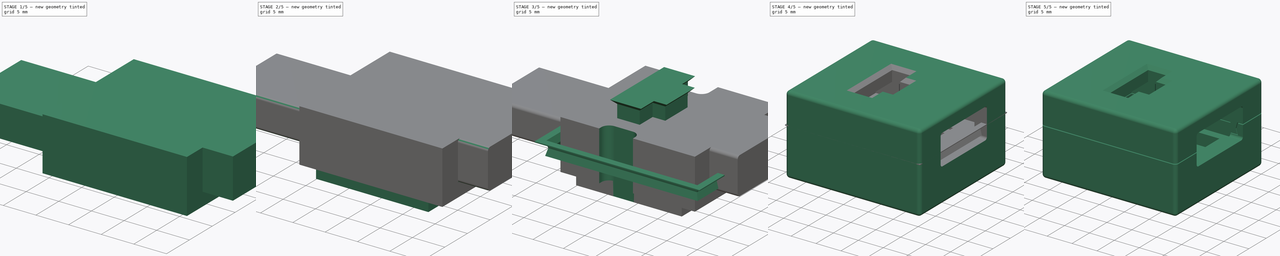
[diagram: build sequence overview — one tinted view per stage of 5, left to right]
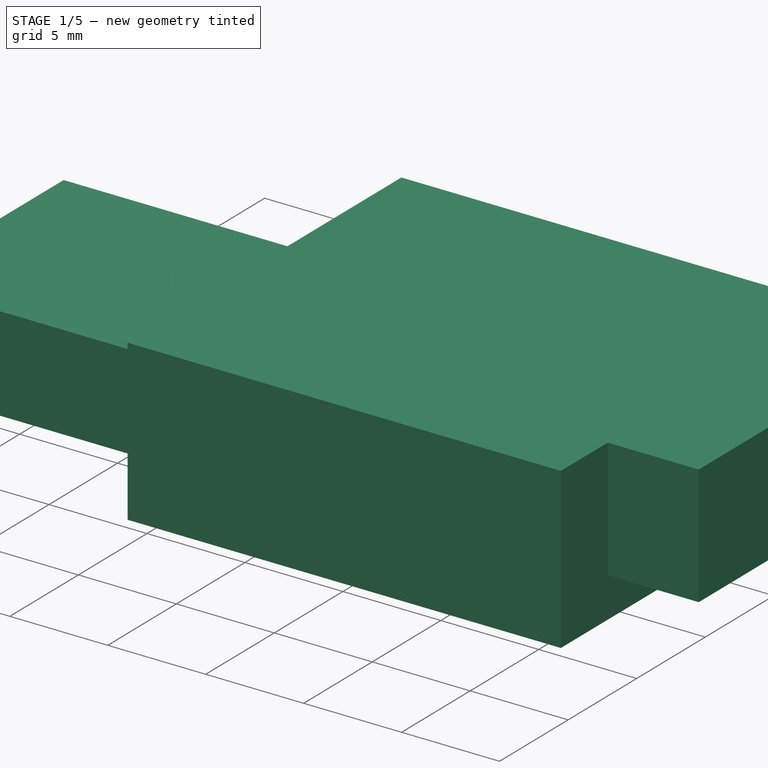
[diagram: stage 1 of 5 — iso view after this stage's code; geometry added in this stage tinted green]
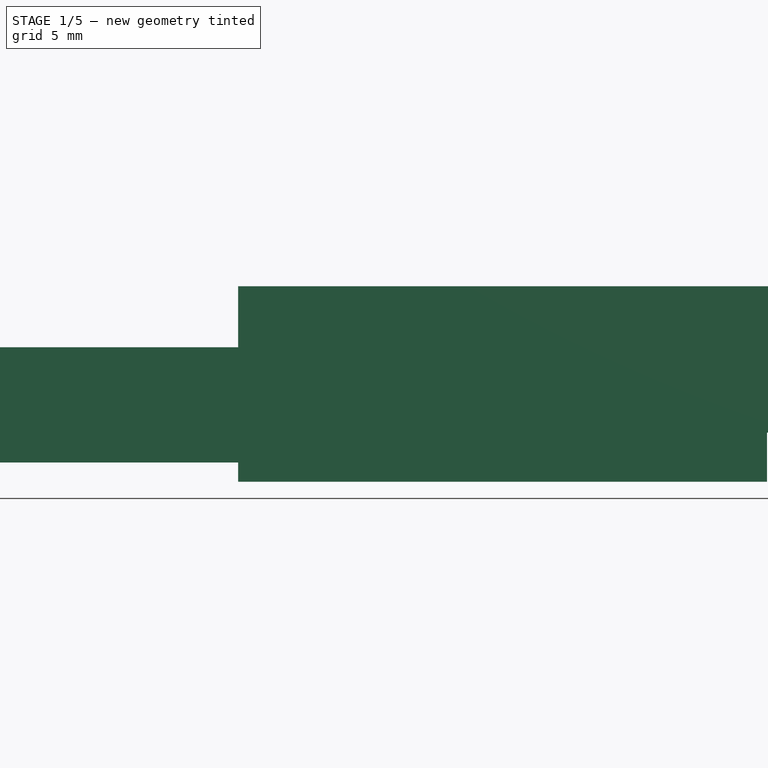
[diagram: stage 1 of 5 — front view after this stage's code; geometry added in this stage tinted green]
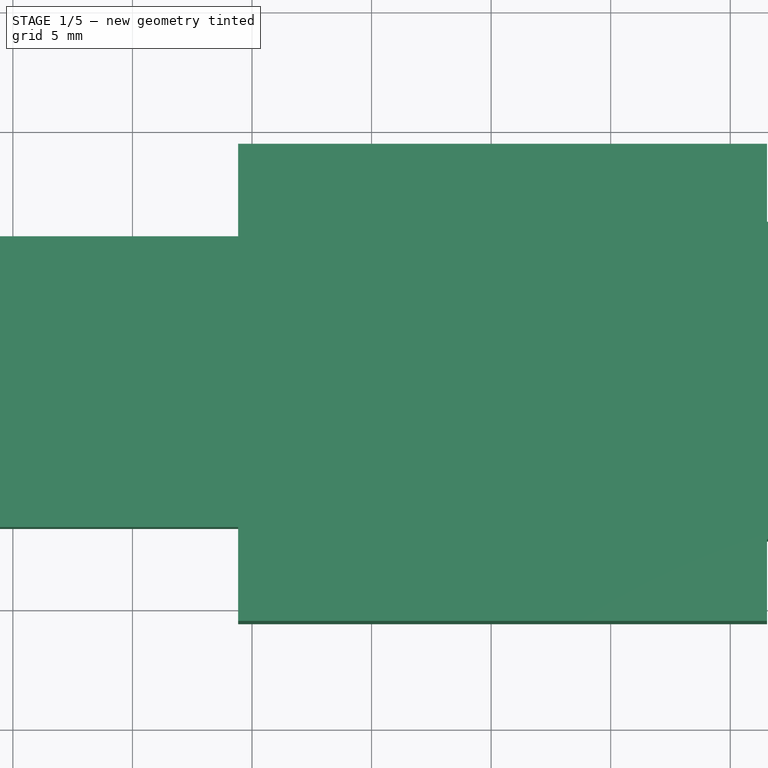
[diagram: stage 1 of 5 — top view after this stage's code; geometry added in this stage tinted green]
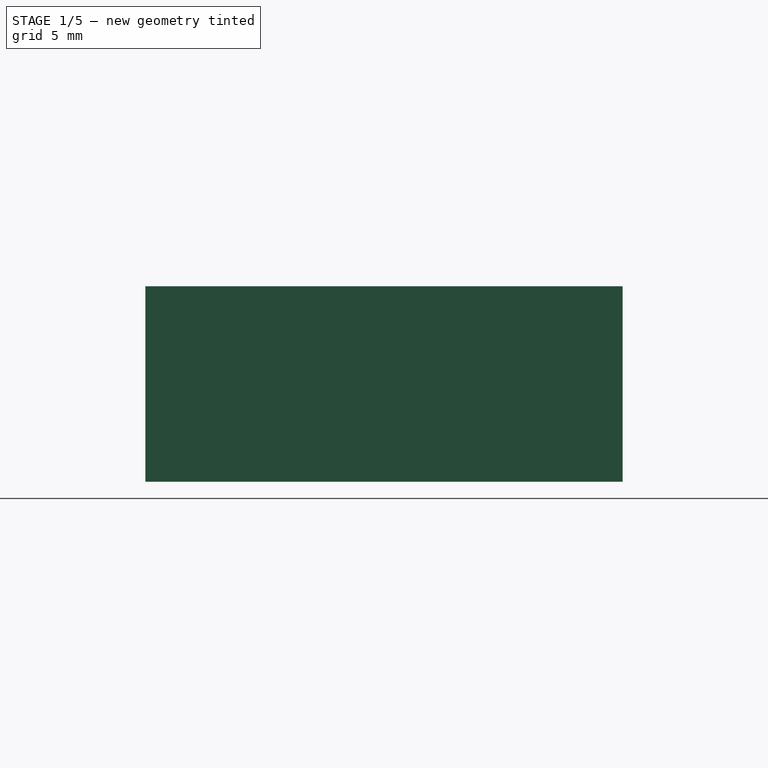
[diagram: stage 1 of 5 — right view after this stage's code; geometry added in this stage tinted green]
FCSTD DOCUMENT  (FreeCAD 0.21R33668 +7 (Git))
Label: case
License: All rights reserved
LicenseURL: http://en.wikipedia.org/wiki/All_rights_reserved
objects: Sketcher::SketchObject×11, PartDesign::Pad×6, Part::Feature×4, App::Part×4, PartDesign::Pocket×3, PartDesign::Body×3, Part::FeaturePython×3, PartDesign::AdditivePipe×2, App::Link×2, Spreadsheet::Sheet×1, PartDesign::Fillet×1, PartDesign::ShapeBinder×1, App::DocumentObjectGroup×1, Part::Cut×1
note: 47 computed .brp shape members not serialized (recipe doc carries the construction recipe); baked Part::Feature solids carry a one-line shape summary decoded from their .brp

FEATURE [Part::Feature] Part__Feature  label="COMPOUND"
  shape: bbox 15.31 x 14.02 x 10.91 mm, 836 faces, 6 solids (baked)
FEATURE [App::Part] _1400416021  label="61400416021"
  Group = -> [Part__Feature]
  Origin = -> Origin
  Placement = pos=(14.858,9.469,4.35) rot=(0,0,1;1.5708rad)
FEATURE [Part::Feature] Part__Feature001  label="SOLID"
  shape: bbox 2.54 x 10.16 x 11.54 mm, 100 faces (baked)
FEATURE [App::Part] PinHeader_1x04_P2_54mm_Vertical  label="PinHeader_1x04_P2.54mm_Vertical"
  Group = -> [Part__Feature001]
  Origin = -> Origin001
  Placement = pos=(7.747,5.349,1.25) rot=(0,0,1;3.14159rad)
FEATURE [Part::Feature] Part__Feature002  label="COMPOUND001"
  shape: bbox 12.7 x 5.97 x 20.36 mm, 302 faces (baked)
FEATURE [App::Part] _80370001  label="480370001"
  Group = -> [Part__Feature002]
  Origin = -> Origin002
  Placement = pos=(-5.744,9.469,2.05) rot=(-0.57735,0.57735,0.57735;4.18879rad)
FEATURE [Part::Feature] Part__Feature003  label="COMPOUND002"
  shape: bbox 20.96 x 18.8 x 1.2 mm, 34 faces (baked)
FEATURE [App::Part] Open_CASCADE_STEP_translator_6_9_1  label="Open CASCADE STEP translator 6.9 1"
  Group = -> [_1400416021,PinHeader_1x04_P2_54mm_Vertical,_80370001,Part__Feature003]
  Origin = -> Origin003
FEATURE [Sketcher::SketchObject] Sketch  label="NegBaseSketch"
  AttachmentOffset = pos=(0,0,-0.26) rot=(0,0,1;0rad)
  FullyConstrained = true
  MapMode = 5
  Placement = pos=(0,0,-0.26) rot=(0,0,1;0rad)
  Support = -> [XY_Plane004]
  expr: .AttachmentOffset.Base.z = -0.2 mm - <<Param>>.T_Z
  expr: .Constraints.X1 = -<<Param>>.S_SIDE - <<Param>>.T_XY
  expr: .Constraints.X2 = 20.955 mm + <<Param>>.S_SIDE + <<Param>>.T_XY
  expr: .Constraints.Y1 = -<<Param>>.S_SIDE - <<Param>>.T_XY
  expr: .Constraints.Y2 = 18.796 mm + <<Param>>.S_SIDE + <<Param>>.T_XY
  sketch-geometry (4):
    g0: LineSegment StartX=-0.58 StartY=-0.58 StartZ=0 EndX=21.535 EndY=-0.58 EndZ=0
    g1: LineSegment StartX=21.535 StartY=-0.58 StartZ=0 EndX=21.535 EndY=19.376 EndZ=0
    g2: LineSegment StartX=21.535 StartY=19.376 StartZ=0 EndX=-0.58 EndY=19.376 EndZ=0
    g3: LineSegment StartX=-0.58 StartY=19.376 StartZ=0 EndX=-0.58 EndY=-0.58 EndZ=0
  constraints (12):
    c: Coincident(g0,g1)
    c: Coincident(g1,g2)
    c: Coincident(g2,g3)
    c: Coincident(g3,g0)
    c: Horizontal(g0)
    c: Horizontal(g2)
    c: Vertical(g1)
    c: Vertical(g3)
    c: DistanceX(g1) = 21.535  'X2'
    c: DistanceY(g1) = 19.376  'Y2'
    c: DistanceX(g0) = -0.58  'X1'
    c: DistanceY(g0) = -0.58  'Y1'
FEATURE [PartDesign::Pad] Pad  label="NegBasePad"
  Direction = (0,0,1)
  Length = 8.17
  Length2 = 10
  Profile = -> Sketch
  ReferenceAxis = -> Sketch [N_Axis]
  Type = 0
  expr: Length = 8.05 mm + 2 * <<Param>>.T_Z
FEATURE [Sketcher::SketchObject] Sketch001  label="NegUsbJackSketch"
  AttachmentOffset = pos=(0,0,1.79) rot=(0,0,1;0rad)
  FullyConstrained = true
  MapMode = 5
  Placement = pos=(0,0,1.79) rot=(0,0,1;0rad)
  Support = -> [XY_Plane004]
  expr: .AttachmentOffset.Base.z = 1.85 mm - <<Param>>.T_Z
  expr: .Constraints.Y1 = 2.919 mm - <<Param>>.T_XY
  expr: .Constraints.Y2 = 16.03 mm + <<Param>>.T_XY
  sketch-geometry (4):
    g0: LineSegment StartX=12.18 StartY=2.839 StartZ=0 EndX=26.18 EndY=2.839 EndZ=0
    g1: LineSegment StartX=26.18 StartY=2.839 StartZ=0 EndX=26.18 EndY=16.11 EndZ=0
    g2: LineSegment StartX=26.18 StartY=16.11 StartZ=0 EndX=12.18 EndY=16.11 EndZ=0
    g3: LineSegment StartX=12.18 StartY=16.11 StartZ=0 EndX=12.18 EndY=2.839 EndZ=0
  constraints (12):
    c: Coincident(g0,g1)
    c: Coincident(g1,g2)
    c: Coincident(g2,g3)
    c: Coincident(g3,g0)
    c: Horizontal(g0)
    c: Horizontal(g2)
    c: Vertical(g1)
    c: Vertical(g3)
    c: DistanceX(g0) = 12.18  'X1'
    c: DistanceY(g0) = 2.839  'Y1'
    c: DistanceX(g1) = 26.18  'X2'
    c: DistanceY(g1) = 16.11  'Y2'
FEATURE [PartDesign::Pad] Pad002  label="NegUsbJackPad"
  BaseFeature = -> Pad
  Direction = (0,0,1)
  Length = 6.12
  Length2 = 10
  Profile = -> Sketch001
  ReferenceAxis = -> Sketch001 [N_Axis]
  Type = 0
  expr: Length = 6 mm + 2 * <<Param>>.T_Z
FEATURE [Sketcher::SketchObject] Sketch003  label="NegUsbPlugSketch"
  AttachmentOffset = pos=(0,0,0.54) rot=(0,0,1;0rad)
  FullyConstrained = true
  MapMode = 5
  Placement = pos=(0,0,0.54) rot=(0,0,1;0rad)
  Support = -> [XY_Plane004]
  expr: .AttachmentOffset.Base.z = 0.6 mm - <<Param>>.T_Z
  expr: .Constraints.Y1 = 3.469 mm - <<Param>>.T_XY
  expr: .Constraints.Y2 = 15.469 mm + <<Param>>.T_XY
  sketch-geometry (4):
    g0: LineSegment StartX=-15.14 StartY=3.389 StartZ=0 EndX=3.66 EndY=3.389 EndZ=0
    g1: LineSegment StartX=3.66 StartY=3.389 StartZ=0 EndX=3.66 EndY=15.549 EndZ=0
    g2: LineSegment StartX=3.66 StartY=15.549 StartZ=0 EndX=-15.14 EndY=15.549 EndZ=0
    g3: LineSegment StartX=-15.14 StartY=15.549 StartZ=0 EndX=-15.14 EndY=3.389 EndZ=0
  constraints (12):
    c: Coincident(g0,g1)
    c: Coincident(g1,g2)
    c: Coincident(g2,g3)
    c: Coincident(g3,g0)
    c: Horizontal(g0)
    c: Horizontal(g2)
    c: Vertical(g1)
    c: Vertical(g3)
    c: DistanceX(g0) = 3.66  'X1'
    c: DistanceY(g0) = 3.389  'Y1'
    c: DistanceX(g2) = -15.14  'X2'
    c: DistanceY(g2) = 15.549  'Y2'
FEATURE [PartDesign::Pad] Pad003  label="NegUsbPlugPad"
  BaseFeature = -> Pad002
  Direction = (0,0,1)
  Length = 4.82
  Length2 = 10
  Profile = -> Sketch003
  ReferenceAxis = -> Sketch003 [N_Axis]
  Type = 0
  expr: Length = 4.7 mm + 2 * <<Param>>.T_Z
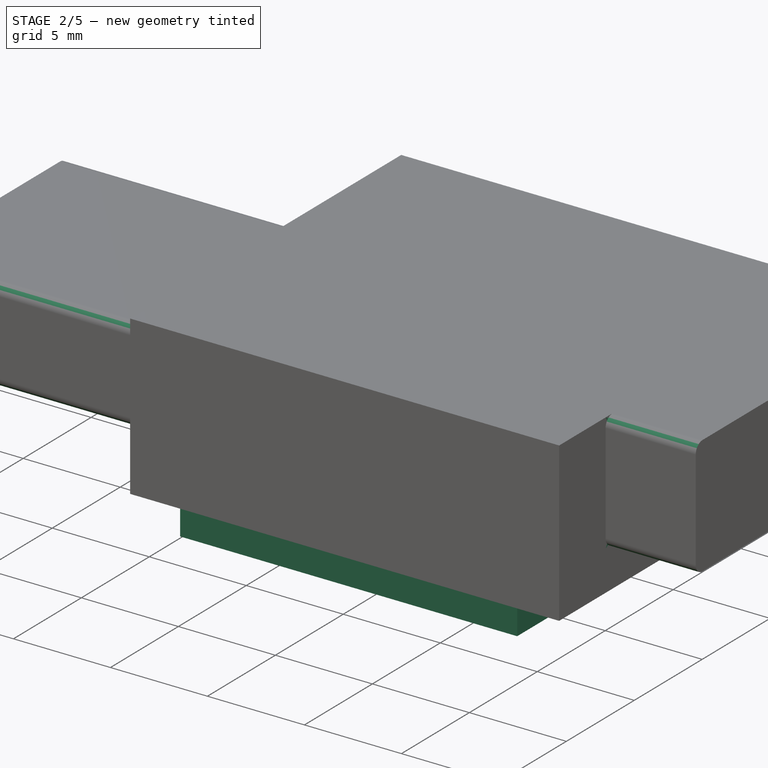
[diagram: stage 2 of 5 — iso view after this stage's code; geometry added in this stage tinted green]
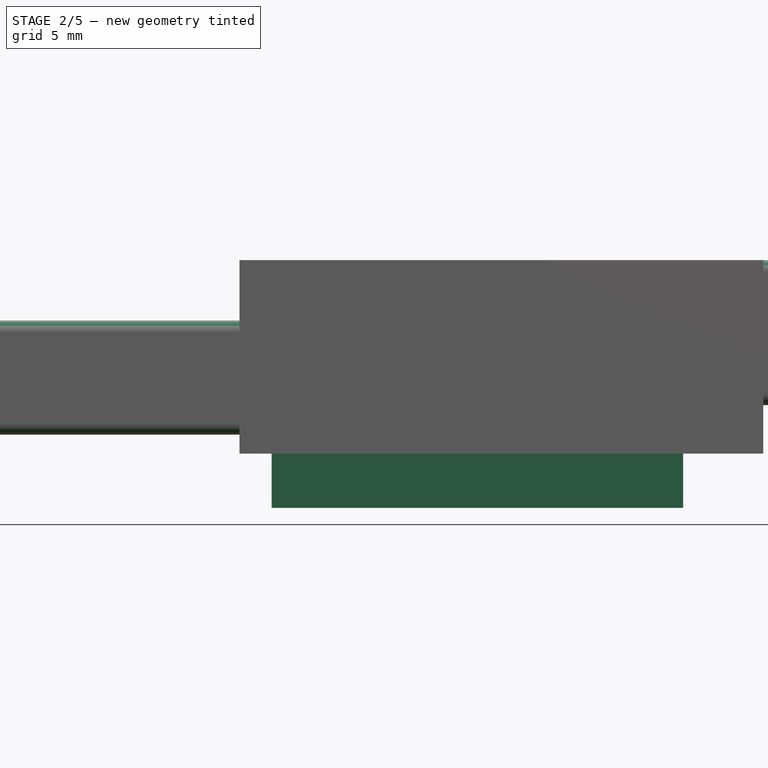
[diagram: stage 2 of 5 — front view after this stage's code; geometry added in this stage tinted green]
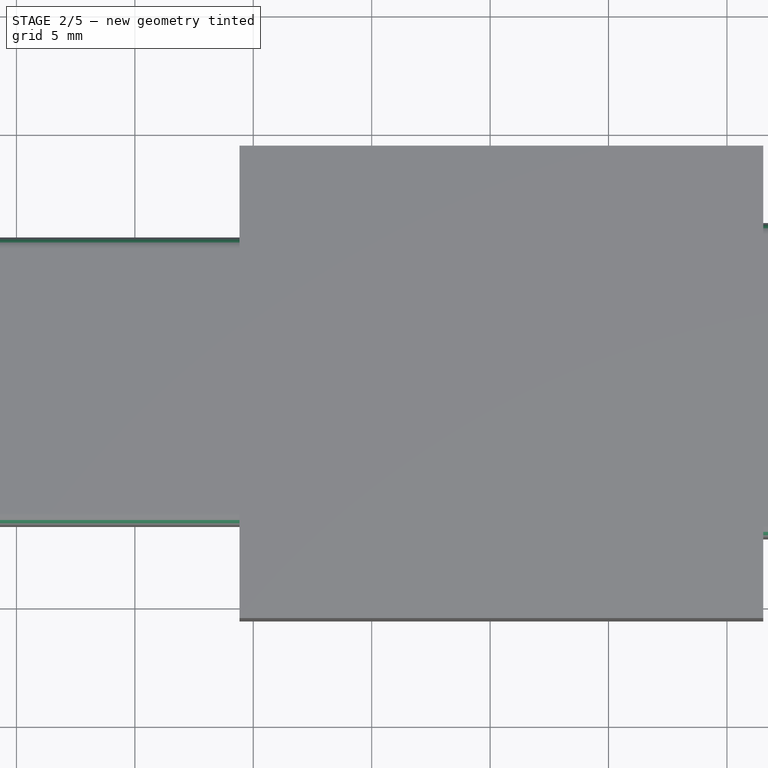
[diagram: stage 2 of 5 — top view after this stage's code; geometry added in this stage tinted green]
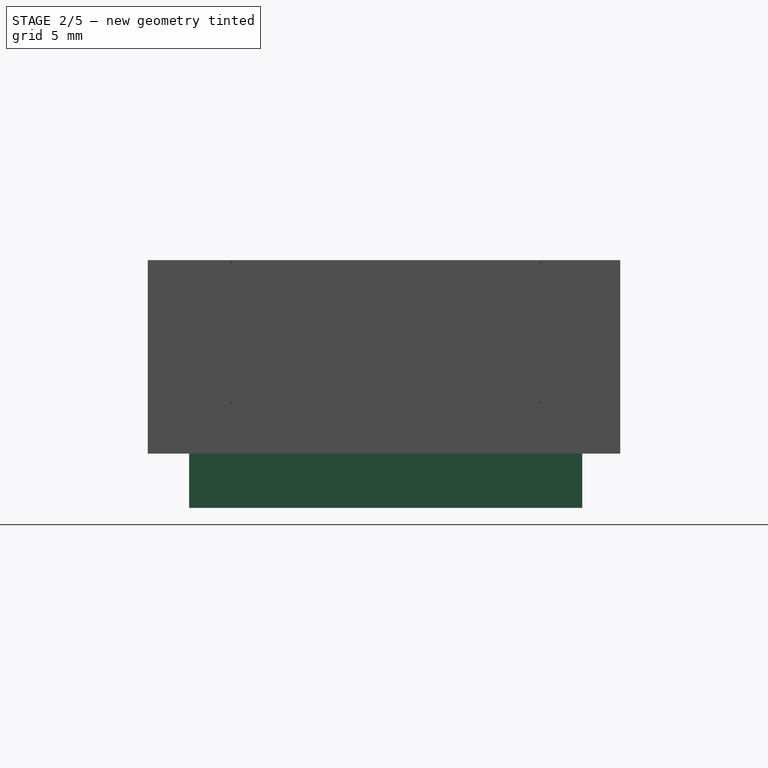
[diagram: stage 2 of 5 — right view after this stage's code; geometry added in this stage tinted green]
FEATURE [Spreadsheet::Sheet] Spreadsheet  label="Param"
  cells = A1='Key; B1='Value; C1='Comment; A2='T_XY; B2(T_XY)==0.08 mm; C2='X/Y tolerancy.; A3='T_Z; B3(T_Z)==0.06 mm; C3='Z tolerancy.; A4='T_WALL; B4(T_WALL)==2.5 mm; C4='Wall thickness.; A5='S_SIDE; B5(S_SIDE)==0.5 mm; C5='Side spacing.; A6='S_PIN; B6(S_PIN)==2.55 mm; C6='Pin spacing.; A7='W_PIN_LATCH; B7(W_PIN_LATCH)==2 mm; C7='Pin latch width.; A8='H_PIN_LATCH; B8(H_PIN_LATCH)==0.2 in; C8='Pin latch height.; A9='D_LATCH; B9(D_LATCH)==2 mm; C9='Wall latch depth.; A10='A_LATCH; B10(A_LATCH)==75 °; C10='Wall latch angle.; A11='R_CORNER; B11(R_CORNER)==0.7 mm; C11='Corner radius.
FEATURE [Sketcher::SketchObject] Sketch004  label="NegPinsSketch"
  FullyConstrained = true
  MapMode = 5
  Support = -> [XY_Plane004]
  expr: .Constraints.X1 = 1.356 mm - 0.5 mm - <<Param>>.T_XY
  expr: .Constraints.X2 = 17.068 mm + 1 mm + <<Param>>.T_XY
  expr: .Constraints.Y1 = 1.749 mm - 0.5 mm - <<Param>>.T_XY
  expr: .Constraints.Y2 = 17.189 mm + 0.5 mm + <<Param>>.T_XY
  sketch-geometry (4):
    g0: LineSegment StartX=0.776 StartY=17.769 StartZ=0 EndX=18.148 EndY=17.769 EndZ=0
    g1: LineSegment StartX=18.148 StartY=17.769 StartZ=0 EndX=18.148 EndY=1.169 EndZ=0
    g2: LineSegment StartX=18.148 StartY=1.169 StartZ=0 EndX=0.776 EndY=1.169 EndZ=0
    g3: LineSegment StartX=0.776 StartY=1.169 StartZ=0 EndX=0.776 EndY=17.769 EndZ=0
  constraints (12):
    c: Coincident(g0,g1)
    c: Coincident(g1,g2)
    c: Coincident(g2,g3)
    c: Coincident(g3,g0)
    c: Horizontal(g0)
    c: Horizontal(g2)
    c: Vertical(g1)
    c: Vertical(g3)
    c: DistanceX(g2) = 0.776  'X1'
    c: DistanceY(g2) = 1.169  'Y1'
    c: DistanceX(g0) = 18.148  'X2'
    c: DistanceY(g0) = 17.769  'Y2'
FEATURE [PartDesign::Pad] Pad004  label="NegPinsPad"
  BaseFeature = -> Pad003
  Direction = (0,0,1)
  Length = 2.55
  Length2 = 10
  Profile = -> Sketch004
  ReferenceAxis = -> Sketch004 [N_Axis]
  Reversed = true
  Type = 0
  expr: Length = <<Param>>.S_PIN
FEATURE [Sketcher::SketchObject] Sketch005  label="NegUsbJackEdgeSketch"
  AttachmentOffset = pos=(0,0,21.535) rot=(0,0,1;0rad)
  FullyConstrained = true
  MapMode = 5
  Placement = pos=(21.535,-4.8e-15,4.8e-15) rot=(0.57735,0.57735,0.57735;2.0944rad)
  Support = -> [YZ_Plane004]
  expr: .AttachmentOffset.Base.z = <<NegBaseSketch>>.Constraints.X2
  expr: .Constraints.X1 = <<NegUsbJackSketch>>.Constraints.Y1
  expr: .Constraints.X2 = <<NegUsbJackSketch>>.Constraints.Y2
  expr: .Constraints.Y1 = <<NegUsbJackSketch>>.Placement.Base.z
  expr: .Constraints.Y2 = <<NegUsbJackSketch>>.Placement.Base.z + <<NegUsbJackPad>>.Length
  expr: Constraints[38] = .Constraints.X1 - 1 mm
  expr: Constraints[39] = .Constraints.Y1 - 1 mm
  sketch-geometry (17):
    g0: LineSegment StartX=3.339 StartY=7.91 StartZ=0 EndX=15.61 EndY=7.91 EndZ=0
    g1: LineSegment StartX=16.11 StartY=7.41 StartZ=0 EndX=16.11 EndY=2.29 EndZ=0
    g2: LineSegment StartX=15.61 StartY=1.79 StartZ=0 EndX=3.339 EndY=1.79 EndZ=0
    g3: LineSegment StartX=2.839 StartY=2.29 StartZ=0 EndX=2.839 EndY=7.41 EndZ=0
    g4: LineSegment StartX=1.839 StartY=8.91 StartZ=0 EndX=17.11 EndY=8.91 EndZ=0
    g5: LineSegment StartX=17.11 StartY=8.91 StartZ=0 EndX=17.11 EndY=0.79 EndZ=0
    g6: LineSegment StartX=17.11 StartY=0.79 StartZ=0 EndX=1.839 EndY=0.79 EndZ=0
    g7: LineSegment StartX=1.839 StartY=0.79 StartZ=0 EndX=1.839 EndY=8.91 EndZ=0
    g8: ArcOfCircle CenterX=3.339 CenterY=7.41 CenterZ=0 NormalX=0 NormalY=0 NormalZ=1 AngleXU=0 Radius=0.5 StartAngle=1.5708 EndAngle=3.14159
    g9: GeomPoint X=2.839 Y=7.91 Z=0
    g10: ArcOfCircle CenterX=3.339 CenterY=2.29 CenterZ=0 NormalX=0 NormalY=0 NormalZ=1 AngleXU=0 Radius=0.5 StartAngle=3.14159 EndAngle=4.71239
    g11: GeomPoint X=2.839 Y=1.79 Z=0
    g12: ArcOfCircle CenterX=15.61 CenterY=2.29 CenterZ=0 NormalX=0 NormalY=0 NormalZ=1 AngleXU=0 Radius=0.5 StartAngle=4.71239 EndAngle=6.28319
    g13: GeomPoint X=16.11 Y=1.79 Z=0
    g14: ArcOfCircle CenterX=15.61 CenterY=7.41 CenterZ=0 NormalX=0 NormalY=0 NormalZ=1 AngleXU=0 Radius=0.5 StartAngle=0 EndAngle=1.5708
    g15: GeomPoint X=16.11 Y=7.91 Z=0
    g16: GeomPoint X=9.4745 Y=4.85 Z=0
  constraints (40):
    c: Horizontal(g0)
    c: Horizontal(g2)
    c: Vertical(g1)
    c: Vertical(g3)
    c: Coincident(g4,g5)
    c: Coincident(g5,g6)
    c: Coincident(g6,g7)
    c: Coincident(g7,g4)
    c: Horizontal(g4)
    c: Horizontal(g6)
    c: Vertical(g5)
    c: Vertical(g7)
    c: DistanceX(g11) = 2.839  'X1'
    c: DistanceY(g11) = 1.79  'Y1'
    c: DistanceX(g15) = 16.11  'X2'
    c: DistanceY(g15) = 7.91  'Y2'
    c: PointOnObject(g9,g0)
    c: PointOnObject(g9,g3)
    c: Tangent(g0,g8) = 1.5708
    c: Tangent(g3,g8) = 1.5708
    c: PointOnObject(g11,g3)
    c: PointOnObject(g11,g2)
    c: Tangent(g3,g10) = 1.5708
    c: Tangent(g2,g10) = 1.5708
    c: PointOnObject(g13,g2)
    c: PointOnObject(g13,g1)
    c: Tangent(g2,g12) = 1.5708
    c: Tangent(g1,g12) = 1.5708
    c: PointOnObject(g15,g1)
    c: PointOnObject(g15,g0)
    c: Tangent(g1,g14) = 1.5708
    c: Tangent(g0,g14) = 1.5708
    c: Equal(g14,g8)
    c: Equal(g8,g10)
    c: Equal(g10,g12)
    c: Radius(g14) = 0.5  'R1'
    c: Symmetric(g11,g15,g16)
    c: Symmetric(g4,g6,g16)
    c: DistanceX(g6) = 1.839
    c: DistanceY(g6) = 0.79
FEATURE [PartDesign::Pocket] Pocket  label="NegUsbJackEdgePocket"
  BaseFeature = -> Pad004
  Direction = (-1,2e-16,-3e-16)
  Length = 5
  Length2 = 5
  Profile = -> Sketch005
  ReferenceAxis = -> Sketch005 [N_Axis]
  Reversed = true
  Type = 1
FEATURE [Sketcher::SketchObject] Sketch006  label="NegUsbPlugEdgeSketch"
  AttachmentOffset = pos=(0,0,-0.58) rot=(0,0,1;0rad)
  FullyConstrained = true
  MapMode = 5
  Placement = pos=(-0.58,1e-16,-1e-16) rot=(0.57735,0.57735,0.57735;2.0944rad)
  Support = -> [YZ_Plane004]
  expr: .AttachmentOffset.Base.z = <<NegBaseSketch>>.Constraints.X1
  expr: .Constraints.X1 = <<NegUsbPlugSketch>>.Constraints.Y1
  expr: .Constraints.X2 = <<NegUsbPlugSketch>>.Constraints.Y2
  expr: .Constraints.Y1 = <<NegUsbPlugSketch>>.Placement.Base.z
  expr: .Constraints.Y2 = <<NegUsbPlugSketch>>.Placement.Base.z + <<NegUsbPlugPad>>.Length
  expr: Constraints[18] = .Constraints.X1 - 1 mm
  expr: Constraints[19] = .Constraints.Y1 - 1 mm
  sketch-geometry (17):
    g0: LineSegment StartX=3.889 StartY=5.36 StartZ=0 EndX=15.049 EndY=5.36 EndZ=0
    g1: LineSegment StartX=15.549 StartY=4.86 StartZ=0 EndX=15.549 EndY=1.04 EndZ=0
    g2: LineSegment StartX=15.049 StartY=0.54 StartZ=0 EndX=3.889 EndY=0.54 EndZ=0
    g3: LineSegment StartX=3.389 StartY=1.04 StartZ=0 EndX=3.389 EndY=4.86 EndZ=0
    g4: LineSegment StartX=2.389 StartY=6.36 StartZ=0 EndX=16.549 EndY=6.36 EndZ=0
    g5: LineSegment StartX=16.549 StartY=6.36 StartZ=0 EndX=16.549 EndY=-0.46 EndZ=0
    g6: LineSegment StartX=16.549 StartY=-0.46 StartZ=0 EndX=2.389 EndY=-0.46 EndZ=0
    g7: LineSegment StartX=2.389 StartY=-0.46 StartZ=0 EndX=2.389 EndY=6.36 EndZ=0
    g8: GeomPoint X=9.469 Y=2.95 Z=0
    g9: ArcOfCircle CenterX=3.889 CenterY=4.86 CenterZ=0 NormalX=0 NormalY=0 NormalZ=1 AngleXU=0 Radius=0.5 StartAngle=1.5708 EndAngle=3.14159
    g10: GeomPoint X=3.389 Y=5.36 Z=0
    g11: ArcOfCircle CenterX=15.049 CenterY=4.86 CenterZ=0 NormalX=0 NormalY=0 NormalZ=1 AngleXU=0 Radius=0.5 StartAngle=0 EndAngle=1.5708
    g12: GeomPoint X=15.549 Y=5.36 Z=0
    g13: ArcOfCircle CenterX=15.049 CenterY=1.04 CenterZ=0 NormalX=0 NormalY=0 NormalZ=1 AngleXU=0 Radius=0.5 StartAngle=4.71239 EndAngle=6.28319
    g14: GeomPoint X=15.549 Y=0.54 Z=0
    g15: ArcOfCircle CenterX=3.889 CenterY=1.04 CenterZ=0 NormalX=0 NormalY=0 NormalZ=1 AngleXU=0 Radius=0.5 StartAngle=3.14159 EndAngle=4.71239
    g16: GeomPoint X=3.389 Y=0.54 Z=0
  constraints (40):
    c: Horizontal(g0)
    c: Horizontal(g2)
    c: Vertical(g1)
    c: Vertical(g3)
    c: Coincident(g4,g5)
    c: Coincident(g5,g6)
    c: Coincident(g6,g7)
    c: Coincident(g7,g4)
    c: Horizontal(g4)
    c: Horizontal(g6)
    c: Vertical(g5)
    c: Vertical(g7)
    c: DistanceX(g16) = 3.389  'X1'
    c: DistanceY(g16) = 0.54  'Y1'
    c: DistanceX(g12) = 15.549  'X2'
    c: DistanceY(g12) = 5.36  'Y2'
    c: Symmetric(g12,g16,g8)
    c: Symmetric(g6,g4,g8)
    c: DistanceX(g6) = 2.389
    c: DistanceY(g6) = -0.46
    c: PointOnObject(g10,g3)
    c: PointOnObject(g10,g0)
    c: Tangent(g3,g9) = 1.5708
    c: Tangent(g0,g9) = 1.5708
    c: PointOnObject(g12,g0)
    c: PointOnObject(g12,g1)
    c: Tangent(g0,g11) = 1.5708
    c: Tangent(g1,g11) = 1.5708
    c: PointOnObject(g14,g1)
    c: PointOnObject(g14,g2)
    c: Tangent(g1,g13) = 1.5708
    c: Tangent(g2,g13) = 1.5708
    c: PointOnObject(g16,g2)
    c: PointOnObject(g16,g3)
    c: Tangent(g2,g15) = 1.5708
    c: Tangent(g3,g15) = 1.5708
    c: Equal(g15,g9)
    c: Equal(g9,g11)
    c: Equal(g11,g13)
    c: Radius(g11) = 0.5  'R1'
FEATURE [PartDesign::Pocket] Pocket001  label="NegUsbPlugEdgePocket"
  BaseFeature = -> Pocket
  Direction = (-1,2e-16,-3e-16)
  Length = 5
  Length2 = 5
  Profile = -> Sketch006
  ReferenceAxis = -> Sketch006 [N_Axis]
  Type = 1
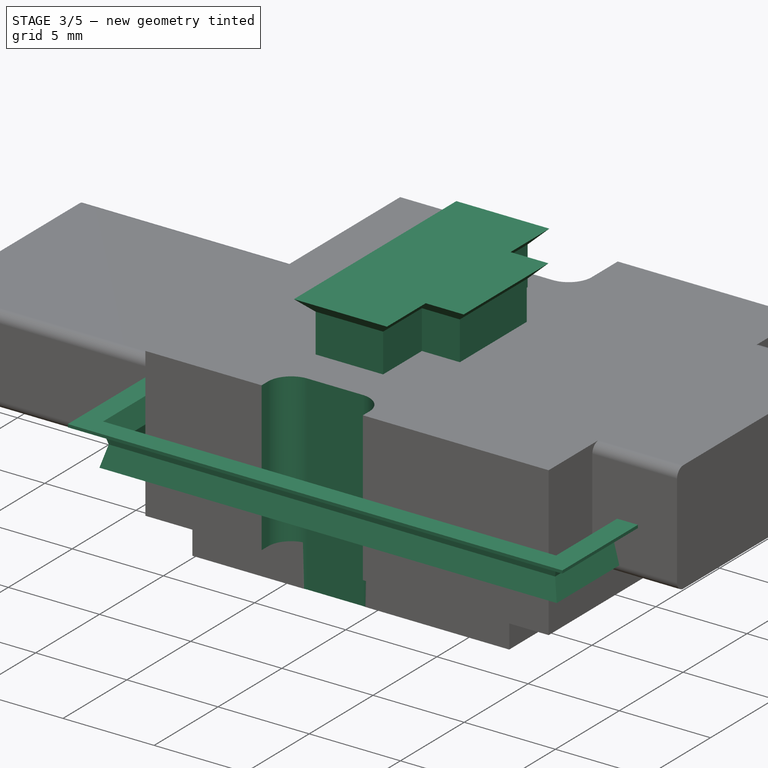
[diagram: stage 3 of 5 — iso view after this stage's code; geometry added in this stage tinted green]
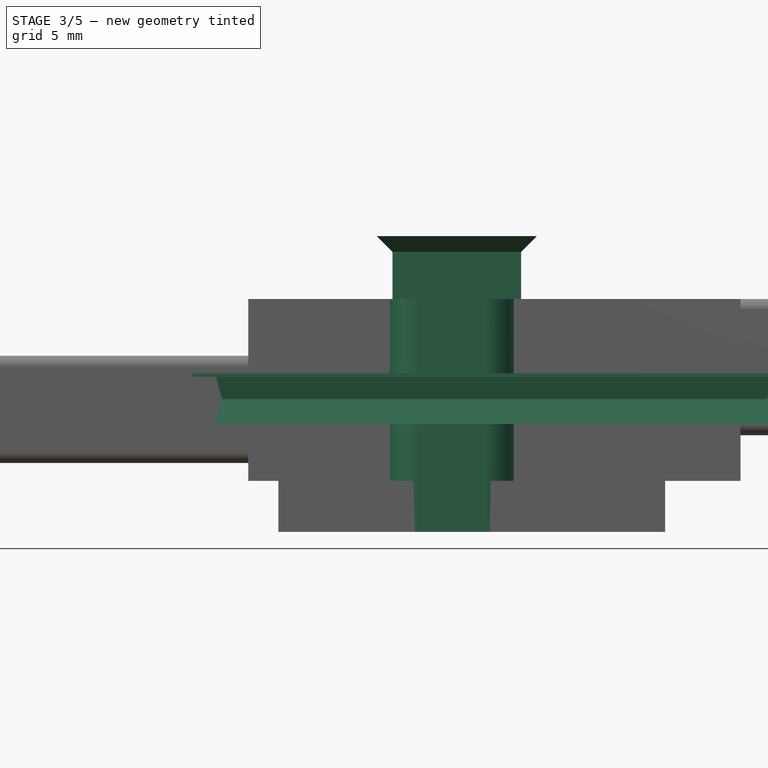
[diagram: stage 3 of 5 — front view after this stage's code; geometry added in this stage tinted green]
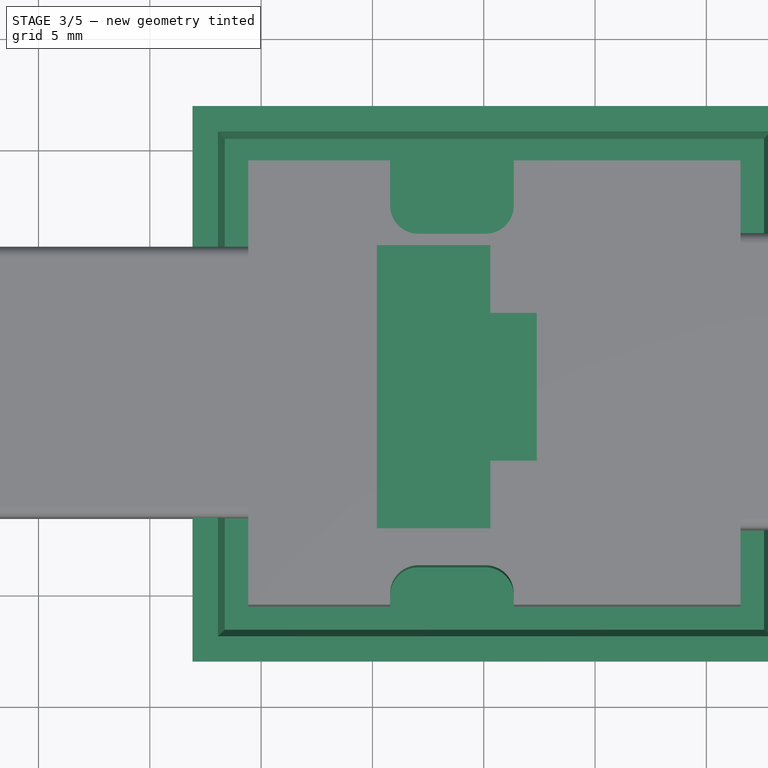
[diagram: stage 3 of 5 — top view after this stage's code; geometry added in this stage tinted green]
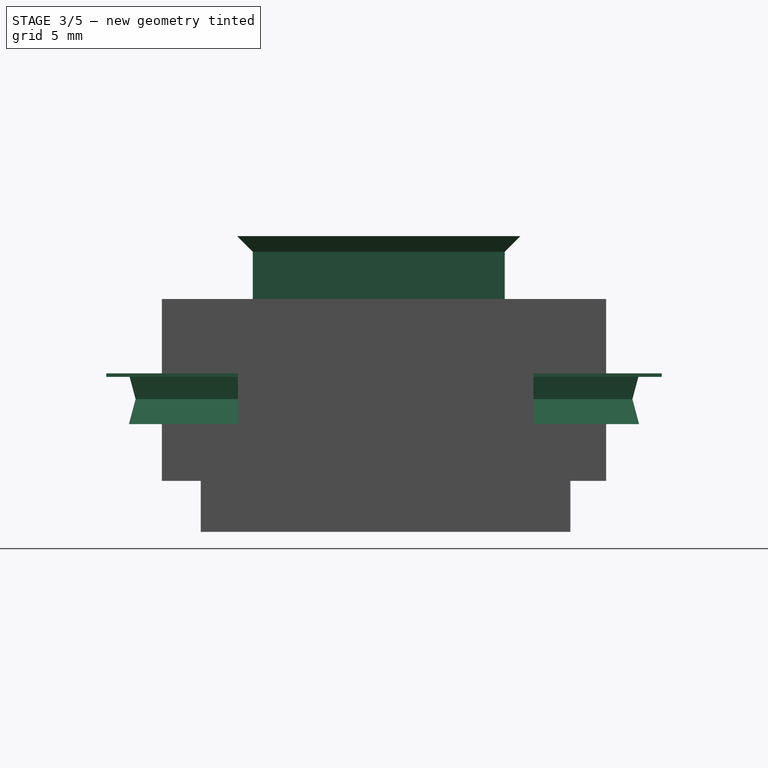
[diagram: stage 3 of 5 — right view after this stage's code; geometry added in this stage tinted green]
FEATURE [Sketcher::SketchObject] Sketch007  label="NegConnectorSketch"
  FullyConstrained = true
  MapMode = 5
  Support = -> [XY_Plane004]
  expr: Constraints[17] = <<Param>>.H_PIN_LATCH + 2 * <<Param>>.T_XY
  expr: Constraints[18] = 0.1 " + 2 * (<<Param>>.S_SIDE + <<Param>>.T_XY)
  expr: Constraints[19] = <<Param>>.W_PIN_LATCH + <<Param>>.T_XY
  expr: Constraints[21] = 4 * 0.1 " + 2 * (<<Param>>.S_SIDE + <<Param>>.T_XY)
  expr: Constraints[43] = 0.1 "
  sketch-geometry (15):
    g0: LineSegment StartX=5.9 StartY=14.82 StartZ=0 EndX=9.6 EndY=14.82 EndZ=0
    g1: LineSegment StartX=9.6 StartY=14.82 StartZ=0 EndX=9.6 EndY=11.78 EndZ=0
    g2: LineSegment StartX=9.6 StartY=3.5 StartZ=0 EndX=5.9 EndY=3.5 EndZ=0
    g3: LineSegment StartX=5.9 StartY=3.5 StartZ=0 EndX=5.9 EndY=14.82 EndZ=0
    g4: LineSegment StartX=9.6 StartY=11.78 StartZ=0 EndX=11.68 EndY=11.78 EndZ=0
    g5: LineSegment StartX=11.68 StartY=11.78 StartZ=0 EndX=11.68 EndY=6.54 EndZ=0
    g6: LineSegment StartX=11.68 StartY=6.54 StartZ=0 EndX=9.6 EndY=6.54 EndZ=0
    g7: LineSegment StartX=9.6 StartY=6.54 StartZ=0 EndX=9.6 EndY=3.5 EndZ=0
    g8: LineSegment StartX=7.75 StartY=14.82 StartZ=0 EndX=7.75 EndY=12.97 EndZ=0
    g9: LineSegment StartX=7.75 StartY=12.97 StartZ=0 EndX=7.75 EndY=10.43 EndZ=0
    g10: LineSegment StartX=7.75 StartY=10.43 StartZ=0 EndX=7.75 EndY=7.89 EndZ=0
    g11: LineSegment StartX=7.75 StartY=7.89 StartZ=0 EndX=7.75 EndY=5.35 EndZ=0
    g12: LineSegment StartX=7.75 StartY=5.35 StartZ=0 EndX=7.75 EndY=3.5 EndZ=0
    g13: LineSegment StartX=7.75 StartY=5.35 StartZ=0 EndX=5.9 EndY=5.35 EndZ=0
    g14: LineSegment StartX=7.75 StartY=5.35 StartZ=0 EndX=9.6 EndY=5.35 EndZ=0
  constraints (48):
    c: Coincident(g0,g1)
    c: Coincident(g7,g2)
    c: Coincident(g2,g3)
    c: Coincident(g3,g0)
    c: Horizontal(g0)
    c: Horizontal(g2)
    c: Vertical(g1)
    c: Vertical(g3)
    c: Coincident(g4,g5)
    c: Coincident(g5,g6)
    c: Horizontal(g4)
    c: Horizontal(g6)
    c: Vertical(g5)
    c: Coincident(g1,g4)
    c: Coincident(g6,g7)
    c: Vertical(g1,g6)
    c: Equal(g1,g7)
    c: DistanceY(g5,g5) = 5.24
    c: DistanceX(g2,g2) = 3.7
    c: DistanceX(g6,g6) = 2.08
    c: Vertical(g7)
    c: DistanceY(g3,g3) = 11.32
    c: PointOnObject(g8,g0)
    c: Vertical(g8)
    c: Coincident(g9,g8)
    c: Vertical(g9)
    c: Coincident(g10,g9)
    c: Vertical(g10)
    c: Coincident(g11,g10)
    c: Vertical(g11)
    c: Coincident(g12,g11)
    c: PointOnObject(g12,g2)
    c: Vertical(g12)
    c: Coincident(g13,g11)
    c: PointOnObject(g13,g3)
    c: Horizontal(g13)
    c: Coincident(g14,g11)
    c: PointOnObject(g14,g7)
    c: Horizontal(g14)
    c: Equal(g14,g13)
    c: Equal(g12,g8)
    c: Equal(g9,g10)
    c: Equal(g10,g11)
    c: DistanceY(g9,g9) = 2.54
    c: DistanceX(g11) = 7.75
    c: DistanceY(g11) = 5.35
    c: DistanceX(g2) = 5.9  'X1'
    c: DistanceY(g2) = 3.5  'Y1'
FEATURE [PartDesign::Pad] Pad005  label="NegConnectorPad"
  BaseFeature = -> Pocket001
  Direction = (0,0,1)
  Length = 10.73
  Length2 = 10
  Profile = -> Sketch007
  ReferenceAxis = -> Sketch007 [N_Axis]
  Type = 0
  expr: Length = <<NegBasePad>>.Length + <<Param>>.T_WALL + <<Param>>.T_Z
FEATURE [PartDesign::Body] Body001  label="BaseBody"
  Group = -> [Sketch008,Pad006,Fillet]
  Origin = -> Origin005
  Tip = -> Fillet
FEATURE [Sketcher::SketchObject] Sketch009  label="GapProfileSketch"
  FullyConstrained = true
  MapMode = 5
  Placement = pos=(0,0,0) rot=(1,0,0;1.5708rad)
  Support = -> [XZ_Plane006]
  expr: .Constraints.Y1 = <<NegUsbJackSketch>>.Placement.Base.z + <<NegUsbJackEdgeSketch>>.Constraints.R1
  expr: Constraints[14] = max(max(<<NegBaseSketch>>.Constraints.X1; <<NegMountSketch>>.Constraints.Y1); <<NegBaseSketch>>.Constraints.Y2 - <<NegMountSketch>>.Constraints.Y2)
  expr: Constraints[15] = <<NegBaseSketch>>.Constraints.X1 - <<Param>>.T_WALL
  expr: Constraints[17] = 2 * <<Param>>.T_Z
  expr: Constraints[18] = 2 * <<Param>>.T_XY
  expr: Constraints[19] = <<Param>>.D_LATCH
  expr: Constraints[20] = <<Param>>.D_LATCH + 2 * <<Param>>.T_XY
  expr: Constraints[27] = <<Param>>.A_LATCH
  expr: Constraints[28] = 180 ° - <<Param>>.A_LATCH
  expr: Constraints[32] = <<NegBaseSketch>>.Constraints.Y1
  sketch-geometry (11):
    g0: LineSegment StartX=-3.08 StartY=4.57 StartZ=0 EndX=-1.94292 EndY=4.57 EndZ=0
    g1: LineSegment StartX=-1.90005 StartY=2.41 StartZ=0 EndX=3.294 EndY=2.41 EndZ=0
    g2: LineSegment StartX=3.294 StartY=2.41 StartZ=0 EndX=3.294 EndY=2.29 EndZ=0
    g3: LineSegment StartX=3.294 StartY=2.29 StartZ=0 EndX=-2.06005 EndY=2.29 EndZ=0
    g4: LineSegment StartX=-2.0279 StartY=4.41 StartZ=0 EndX=-3.08 EndY=4.41 EndZ=0
    g5: LineSegment StartX=-3.08 StartY=4.41 StartZ=0 EndX=-3.08 EndY=4.57 EndZ=0
    g6: LineSegment StartX=-1.94292 StartY=4.57 StartZ=0 EndX=-1.6321 EndY=3.41 EndZ=0
    g7: LineSegment StartX=-1.6321 StartY=3.41 StartZ=0 EndX=-1.90005 EndY=2.41 EndZ=0
    g8: LineSegment StartX=-2.06005 StartY=2.29 StartZ=0 EndX=-1.75995 EndY=3.41 EndZ=0
    g9: LineSegment StartX=-1.75995 StartY=3.41 StartZ=0 EndX=-2.0279 EndY=4.41 EndZ=0
    g10: LineSegment StartX=-1.6321 StartY=3.41 StartZ=0 EndX=-0.58 EndY=3.41 EndZ=0
  constraints (33):
    c: Horizontal(g0)
    c: Coincident(g0,g6)
    c: Coincident(g7,g1)
    c: Horizontal(g1)
    c: Coincident(g1,g2)
    c: Vertical(g2)
    c: Coincident(g2,g3)
    c: Horizontal(g3)
    c: Coincident(g3,g8)
    c: Coincident(g9,g4)
    c: Horizontal(g4)
    c: Coincident(g4,g5)
    c: Coincident(g5,g0)
    c: Vertical(g5)
    c: DistanceX(g2) = 3.294
    c: DistanceX(g4) = -3.08
    c: DistanceY(g2) = 2.29  'Y1'
    c: DistanceY(g2,g2) = 0.12
    c: DistanceX(g3,g7) = 0.16
    c: DistanceY(g7,g9) = 2
    c: DistanceY(g7,g6) = 2.16
    c: Coincident(g6,g7)
    c: Coincident(g8,g9)
    c: Horizontal(g6,g8)
    c: Parallel(g6,g9)
    c: Parallel(g8,g7)
    c: Equal(g9,g7)
    c: Angle(g1,g7) = 1.309
    c: Angle(g4,g9) = 1.8326
    c: Coincident(g10,g6)
    c: Horizontal(g10)
    c: Equal(g10,g4)
    c: DistanceX(g10) = -0.58
FEATURE [PartDesign::ShapeBinder] ShapeBinder  label="NegBaseSketchShapeBinder"
  Placement = pos=(0,0,-0.26) rot=(0,0,1;0rad)
  Support = -> [Sketch]
  TraceSupport = false
FEATURE [PartDesign::AdditivePipe] AdditivePipe
  AuxilleryCurvelinear = true
  AuxillerySpineTangent = false
  Binormal = (0,0,0)
  Mode = 0
  Placement = pos=(0,0,0) rot=(1,0,0;1.5708rad)
  Profile = -> Sketch009
  Spine = -> ShapeBinder
  SpineTangent = false
  Transformation = 0
  Transition = 1
FEATURE [PartDesign::Body] Body002  label="Gap"
  Group = -> [Sketch009,ShapeBinder,AdditivePipe]
  Origin = -> Origin006
  Tip = -> AdditivePipe
FEATURE [App::Link] Link  label="PO_Top"
  LinkPlacement = pos=(-7,0,6) rot=(0,1,0;3.14159rad)
  LinkedObject = -> Slice_child0
  Placement = pos=(-7,0,6) rot=(0,1,0;3.14159rad)
FEATURE [App::Link] Link001  label="PO_Bottom"
  LinkedObject = -> Slice_child2
FEATURE [App::DocumentObjectGroup] Group  label="PrintOrientation"
  Group = -> [Link,Link001]
FEATURE [Sketcher::SketchObject] Sketch010  label="NegMountSketch"
  FullyConstrained = true
  MapMode = 5
  Support = -> [XY_Plane004]
  expr: .Constraints.Y1 = 1.27 mm - <<Param>>.T_XY
  expr: .Constraints.Y2 = 16.002 mm + <<Param>>.T_XY
  expr: Constraints[13] = 11.43 mm - <<Param>>.T_XY
  expr: Constraints[14] = 5.715 mm + <<Param>>.T_XY
  expr: Constraints[15] = 0.05 "
  expr: Constraints[27] = <<BaseSketch>>.Constraints.Y1
  expr: Constraints[6] = <<BaseSketch>>.Constraints.Y2
  sketch-geometry (12):
    g0: LineSegment StartX=5.795 StartY=21.876 StartZ=0 EndX=11.35 EndY=21.876 EndZ=0
    g1: LineSegment StartX=11.35 StartY=21.876 StartZ=0 EndX=11.35 EndY=17.352 EndZ=0
    g2: LineSegment StartX=10.08 StartY=16.082 StartZ=0 EndX=7.065 EndY=16.082 EndZ=0
    g3: LineSegment StartX=5.795 StartY=17.352 StartZ=0 EndX=5.795 EndY=21.876 EndZ=0
    g4: ArcOfCircle CenterX=10.08 CenterY=17.352 CenterZ=0 NormalX=0 NormalY=0 NormalZ=1 AngleXU=0 Radius=1.27 StartAngle=4.71239 EndAngle=6.28319
    g5: ArcOfCircle CenterX=7.065 CenterY=17.352 CenterZ=0 NormalX=0 NormalY=0 NormalZ=1 AngleXU=0 Radius=1.27 StartAngle=3.14159 EndAngle=4.71239
    g6: LineSegment StartX=7.065 StartY=1.19 StartZ=0 EndX=10.08 EndY=1.19 EndZ=0
    g7: LineSegment StartX=11.35 StartY=-0.08 StartZ=0 EndX=11.35 EndY=-3.08 EndZ=0
    g8: LineSegment StartX=11.35 StartY=-3.08 StartZ=0 EndX=5.795 EndY=-3.08 EndZ=0
    g9: LineSegment StartX=5.795 StartY=-3.08 StartZ=0 EndX=5.795 EndY=-0.08 EndZ=0
    g10: ArcOfCircle CenterX=10.08 CenterY=-0.08 CenterZ=0 NormalX=0 NormalY=0 NormalZ=1 AngleXU=0 Radius=1.27 StartAngle=0 EndAngle=1.5708
    g11: ArcOfCircle CenterX=7.065 CenterY=-0.08 CenterZ=0 NormalX=0 NormalY=0 NormalZ=1 AngleXU=0 Radius=1.27 StartAngle=1.5708 EndAngle=3.14159
  constraints (32):
    c: Coincident(g0,g1)
    c: Coincident(g3,g0)
    c: Horizontal(g0)
    c: Horizontal(g2)
    c: Vertical(g1)
    c: Vertical(g3)
    c: DistanceY(g0) = 21.876
    c: Tangent(g1,g4) = 1.5708
    c: Tangent(g2,g4) = 1.5708
    c: Tangent(g2,g5) = 1.5708
    c: Tangent(g3,g5) = 1.5708
    c: Equal(g5,g4)
    c: DistanceY(g2) = 16.082  'Y2'
    c: DistanceX(g1) = 11.35
    c: DistanceX(g0) = 5.795
    c: Radius(g4) = 1.27
    c: Coincident(g7,g8)
    c: Coincident(g8,g9)
    c: Horizontal(g6)
    c: Horizontal(g8)
    c: Vertical(g7)
    c: Vertical(g9)
    c: Tangent(g7,g10) = 1.5708
    c: Tangent(g6,g10) = 1.5708
    c: Tangent(g6,g11) = 1.5708
    c: Tangent(g9,g11) = 1.5708
    c: Equal(g11,g10)
    c: DistanceY(g8) = -3.08
    c: Vertical(g9,g3)
    c: Vertical(g7,g1)
    c: DistanceY(g6) = 1.19  'Y1'
    c: Equal(g10,g4)
FEATURE [PartDesign::Pocket] Pocket002  label="NegMountPocket"
  BaseFeature = -> Pad005
  Direction = (0,0,-1)
  Length = 5
  Length2 = 5
  Midplane = true
  Profile = -> Sketch010
  ReferenceAxis = -> Sketch010 [N_Axis]
  Type = 1
FEATURE [Sketcher::SketchObject] Sketch011  label="NegConnectorCornerSketch"
  AttachmentOffset = pos=(0,0,-3.5) rot=(0,0,1;0rad)
  FullyConstrained = true
  MapMode = 5
  Placement = pos=(0,3.5,8e-16) rot=(1,0,0;1.5708rad)
  Support = -> [XZ_Plane004]
  expr: .AttachmentOffset.Base.z = -<<NegConnectorSketch>>.Constraints.Y1
  expr: Constraints[6] = <<Param>>.R_CORNER
  expr: Constraints[7] = <<NegConnectorSketch>>.Constraints.X1
  expr: Constraints[8] = <<NegConnectorPad>>.Length
  sketch-geometry (3):
    g0: LineSegment StartX=5.9 StartY=10.03 StartZ=0 EndX=5.2 EndY=10.73 EndZ=0
    g1: LineSegment StartX=5.2 StartY=10.73 StartZ=0 EndX=5.9 EndY=10.73 EndZ=0
    g2: LineSegment StartX=5.9 StartY=10.73 StartZ=0 EndX=5.9 EndY=10.03 EndZ=0
  constraints (9):
    c: Coincident(g0,g1)
    c: Horizontal(g1)
    c: Coincident(g1,g2)
    c: Coincident(g2,g0)
    c: Vertical(g2)
    c: Equal(g2,g1)
    c: DistanceX(g1,g1) = 0.7
    c: DistanceX(g1) = 5.9
    c: DistanceY(g1) = 10.73
FEATURE [PartDesign::AdditivePipe] AdditivePipe001  label="NegConnectorCornerAdditivePipe"
  AuxilleryCurvelinear = true
  AuxillerySpineTangent = false
  BaseFeature = -> Pocket002
  Binormal = (0,0,0)
  Mode = 0
  Profile = -> Sketch011
  Spine = -> Sketch007
  SpineTangent = false
  Transformation = 0
  Transition = 1
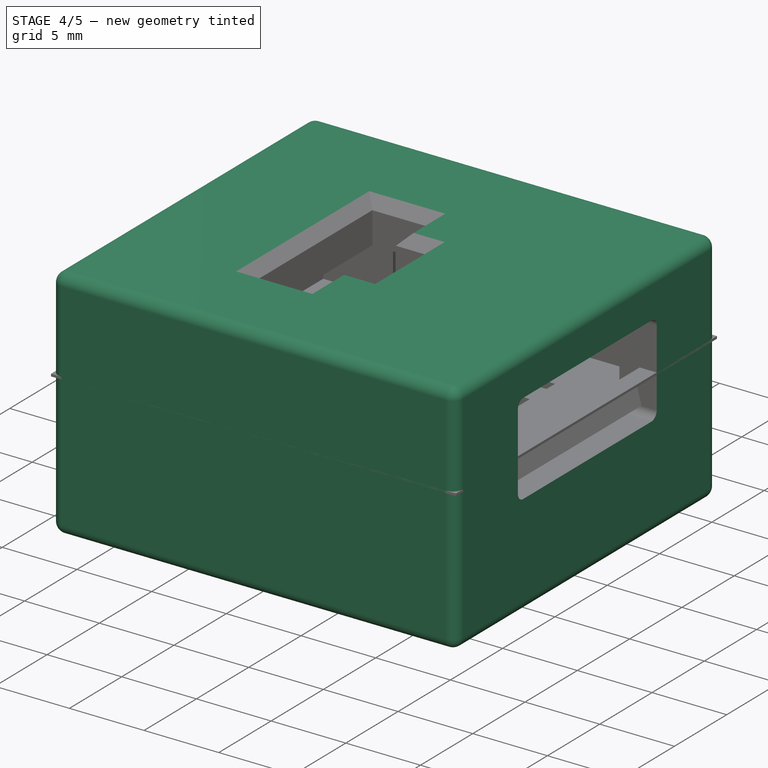
[diagram: stage 4 of 5 — iso view after this stage's code; geometry added in this stage tinted green]
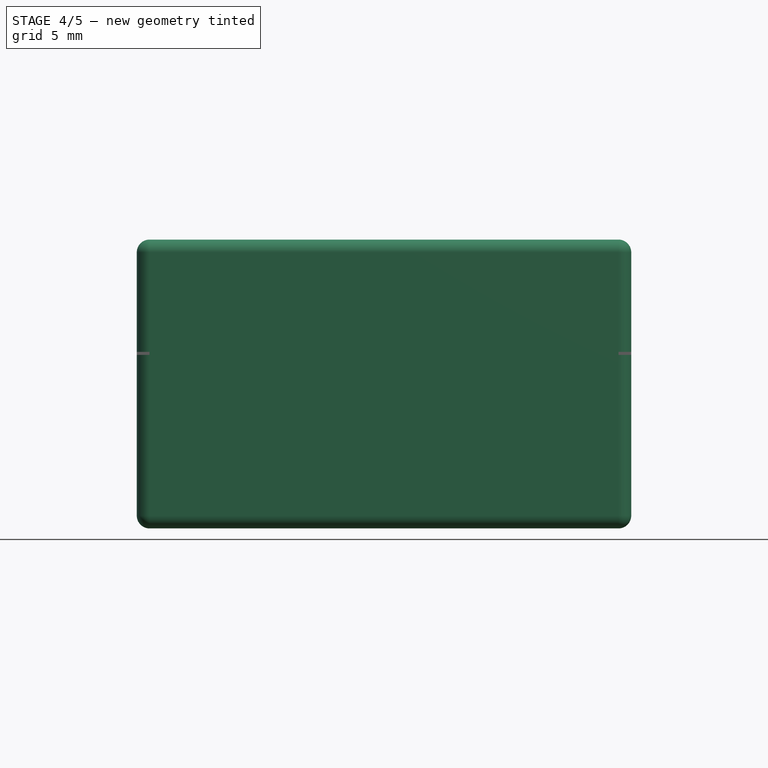
[diagram: stage 4 of 5 — front view after this stage's code; geometry added in this stage tinted green]
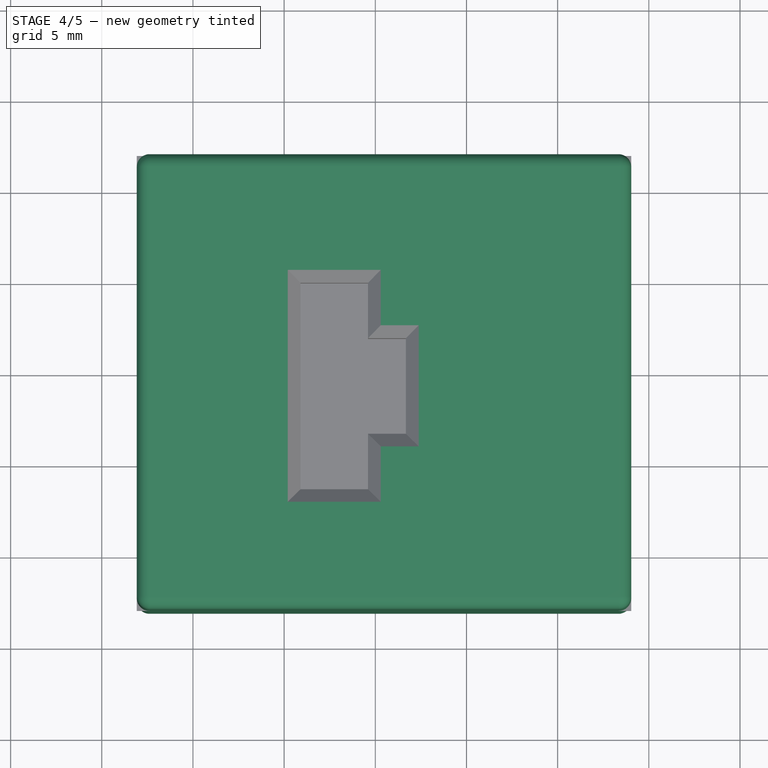
[diagram: stage 4 of 5 — top view after this stage's code; geometry added in this stage tinted green]
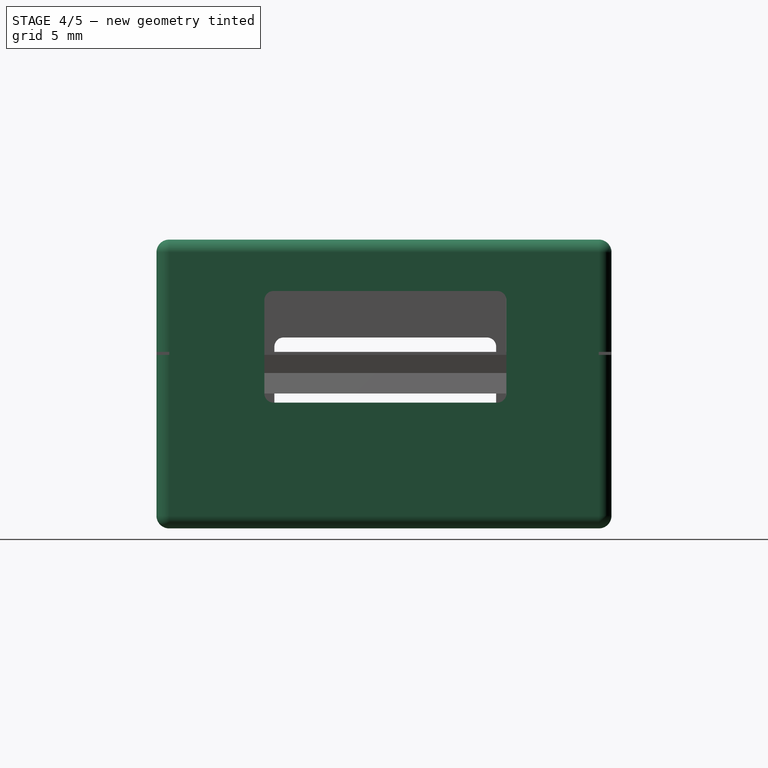
[diagram: stage 4 of 5 — right view after this stage's code; geometry added in this stage tinted green]
FEATURE [Sketcher::SketchObject] Sketch008  label="BaseSketch"
  AttachmentOffset = pos=(0,0,-5.11) rot=(0,0,1;0rad)
  FullyConstrained = true
  MapMode = 5
  Placement = pos=(0,0,-5.11) rot=(0,0,1;0rad)
  Support = -> [XY_Plane005]
  expr: .AttachmentOffset.Base.z = -<<Param>>.T_WALL - <<Param>>.S_PIN - <<Param>>.T_Z
  expr: .Constraints.X1 = <<NegBaseSketch>>.Constraints.X1 - <<Param>>.T_WALL
  expr: .Constraints.X2 = <<NegBaseSketch>>.Constraints.X2 + <<Param>>.T_WALL
  expr: .Constraints.Y1 = <<NegBaseSketch>>.Constraints.Y1 - <<Param>>.T_WALL
  expr: .Constraints.Y2 = <<NegBaseSketch>>.Constraints.Y2 + <<Param>>.T_WALL
  sketch-geometry (4):
    g0: LineSegment StartX=-3.08 StartY=-3.08 StartZ=0 EndX=24.035 EndY=-3.08 EndZ=0
    g1: LineSegment StartX=24.035 StartY=-3.08 StartZ=0 EndX=24.035 EndY=21.876 EndZ=0
    g2: LineSegment StartX=24.035 StartY=21.876 StartZ=0 EndX=-3.08 EndY=21.876 EndZ=0
    g3: LineSegment StartX=-3.08 StartY=21.876 StartZ=0 EndX=-3.08 EndY=-3.08 EndZ=0
  constraints (12):
    c: Coincident(g0,g1)
    c: Coincident(g1,g2)
    c: Coincident(g2,g3)
    c: Coincident(g3,g0)
    c: Horizontal(g0)
    c: Horizontal(g2)
    c: Vertical(g1)
    c: Vertical(g3)
    c: DistanceX(g0) = -3.08  'X1'
    c: DistanceY(g0) = -3.08  'Y1'
    c: DistanceX(g1) = 24.035  'X2'
    c: DistanceY(g1) = 21.876  'Y2'
FEATURE [PartDesign::Pad] Pad006  label="BasePad"
  Direction = (0,0,1)
  Length = 15.84
  Length2 = 10
  Profile = -> Sketch008
  ReferenceAxis = -> Sketch008 [N_Axis]
  Type = 0
  expr: Length = <<NegBasePad>>.Length + <<Param>>.S_PIN + 2 * (<<Param>>.T_WALL + <<Param>>.T_Z)
FEATURE [PartDesign::Fillet] Fillet  label="BaseFillet"
  Base = -> Pad006 [Face6,Face1,Face5,Face3,Face4,Face2]
  BaseFeature = -> Pad006
  Radius = 0.7
  SupportTransform = false
  UseAllEdges = false
  expr: Radius = <<Param>>.R_CORNER
FEATURE [PartDesign::Body] Body  label="Negative"
  Group = -> [Sketch,Pad,Sketch001,Pad002,Sketch003,Pad003,Sketch004,Pad004,Sketch005,Pocket,Sketch006,Pocket001,Sketch007,Pad005,Sketch010,Pocket002,Sketch011,AdditivePipe001]
  Origin = -> Origin004
  Tip = -> AdditivePipe001
FEATURE [Part::Cut] Cut  label="BaseCut"
  Base = -> Body001
  Tool = -> Body
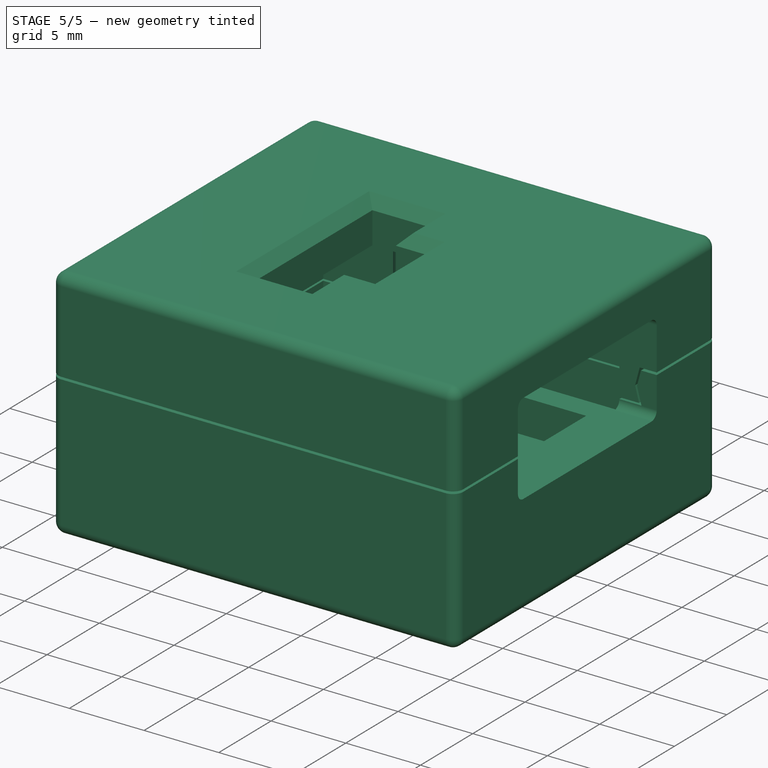
[diagram: stage 5 of 5 — iso view after this stage's code; geometry added in this stage tinted green]
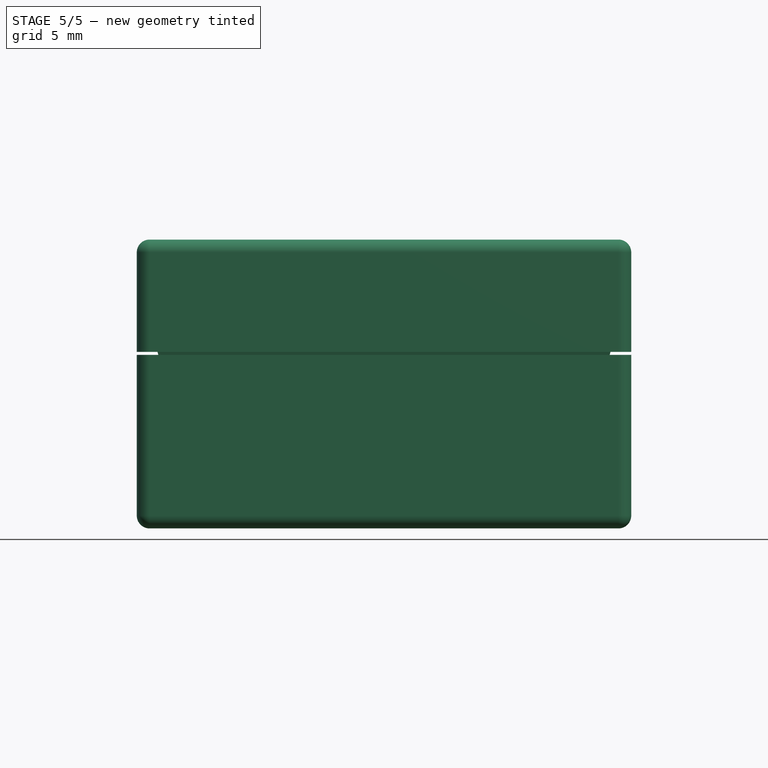
[diagram: stage 5 of 5 — front view after this stage's code; geometry added in this stage tinted green]
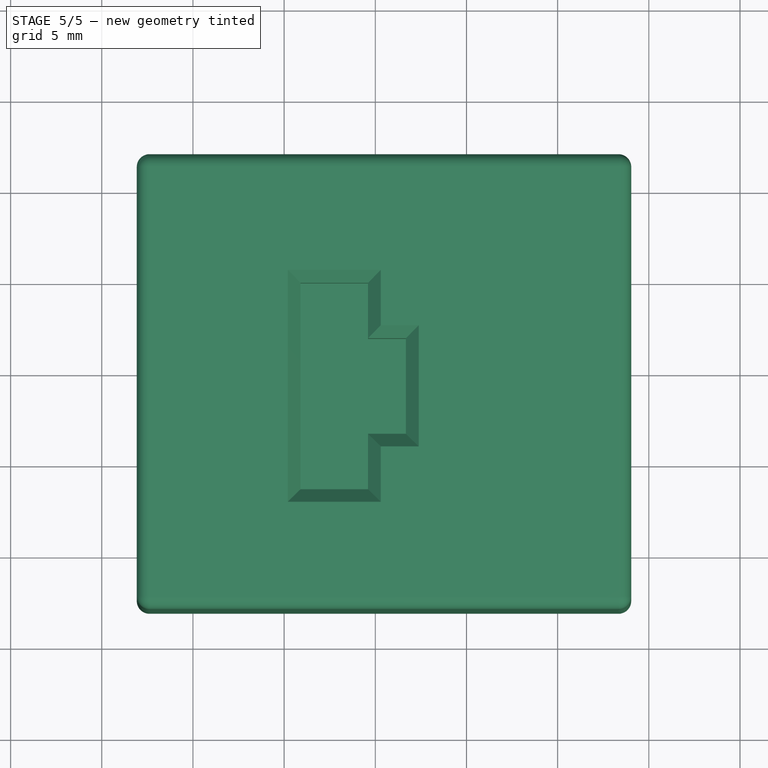
[diagram: stage 5 of 5 — top view after this stage's code; geometry added in this stage tinted green]
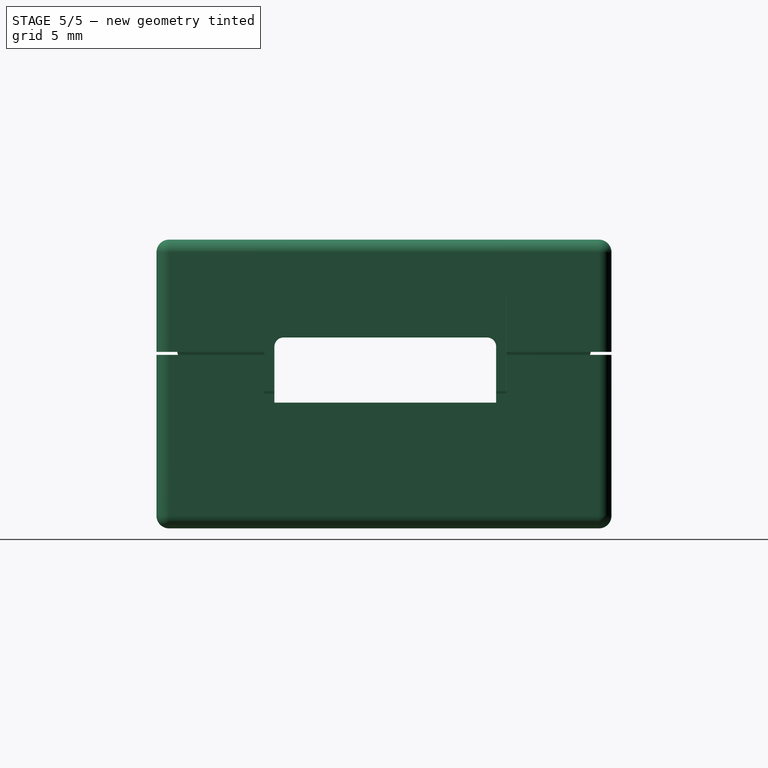
[diagram: stage 5 of 5 — right view after this stage's code; geometry added in this stage tinted green]
FEATURE [Part::FeaturePython] Slice  # WARN: FeaturePython — macro-defined, semantics opaque (R4)
  Base = -> Cut
  Mode = 1
  Tolerance = 0
  Tools = -> [Body002]
FEATURE [Part::FeaturePython] Slice_child0  label="Top"  # WARN: FeaturePython — macro-defined, semantics opaque (R4)
  Base = -> Slice
  FilterType = 1
  Invert = false
  OverrideMaxVal = 0
  WindowFrom = 80
  WindowTo = 100
  items = 0
FEATURE [Part::FeaturePython] Slice_child2  label="Bottom"  # WARN: FeaturePython — macro-defined, semantics opaque (R4)
  Base = -> Slice
  FilterType = 1
  Invert = false
  OverrideMaxVal = 0
  WindowFrom = 80
  WindowTo = 100
  items = 2
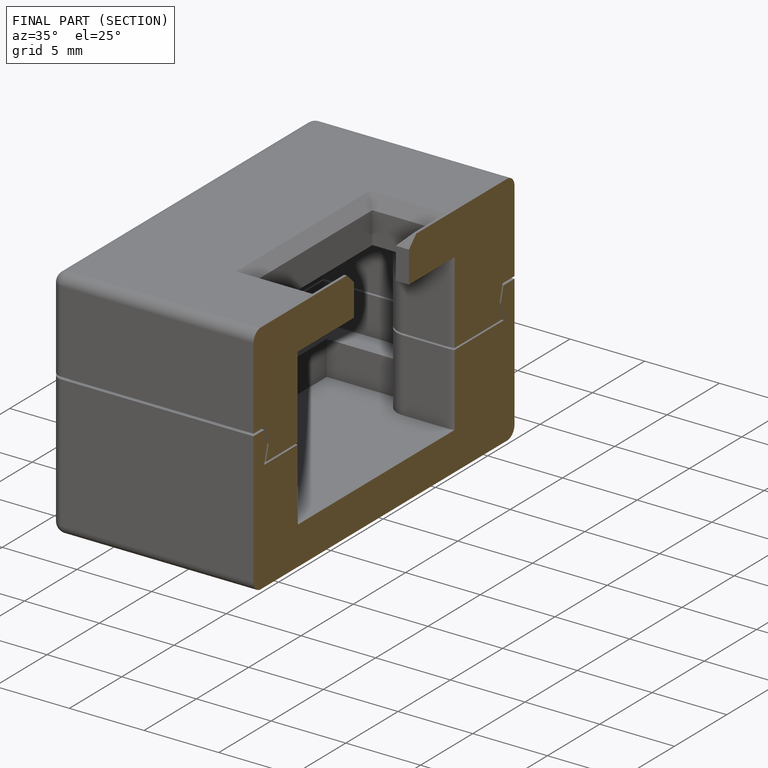
[diagram: finished part — half-section view (interior)]
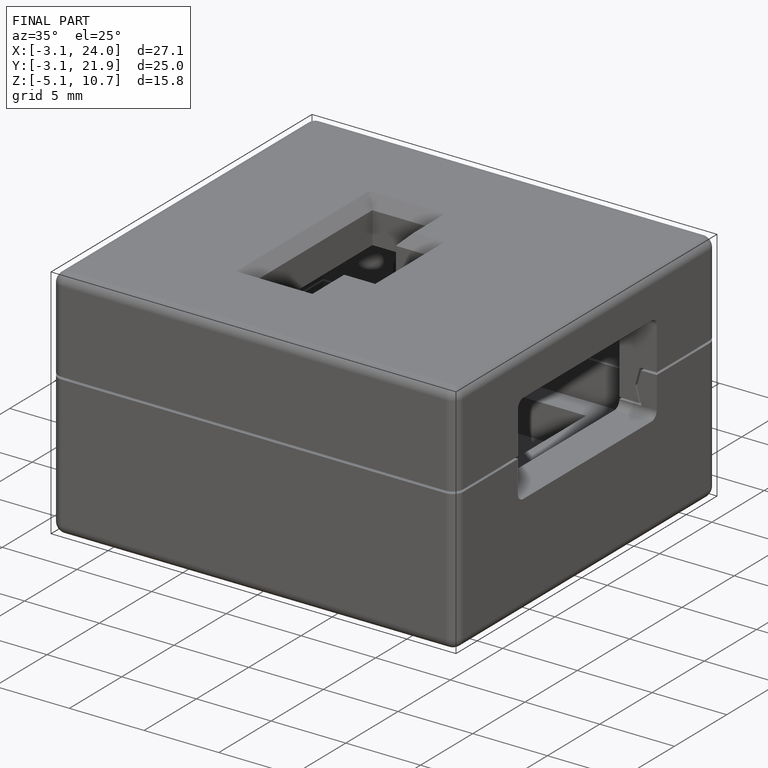
[diagram: finished part — iso view with bounding-box wireframe]
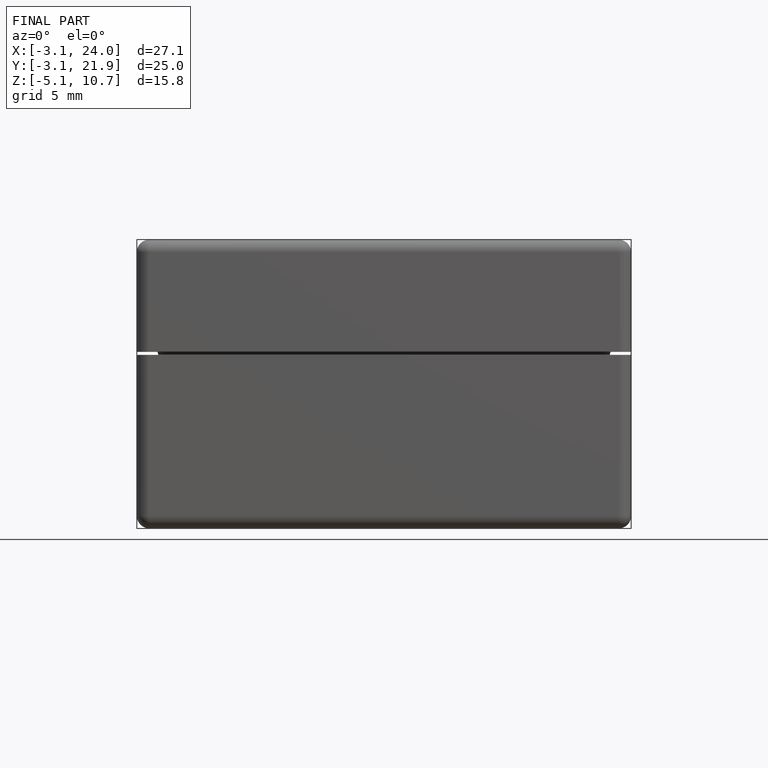
[diagram: finished part — front view with bounding-box wireframe]
